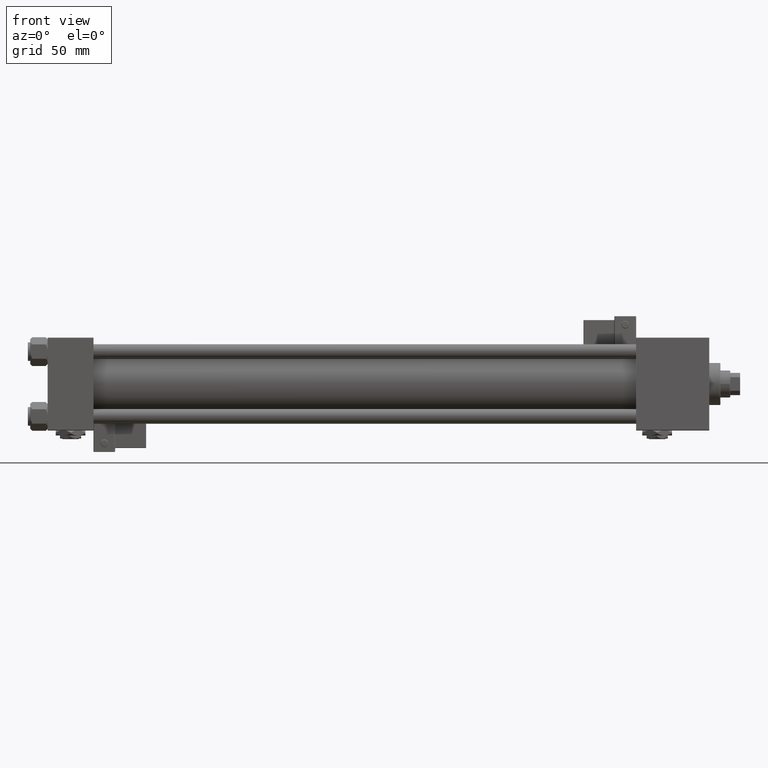
[diagram: clean part render]
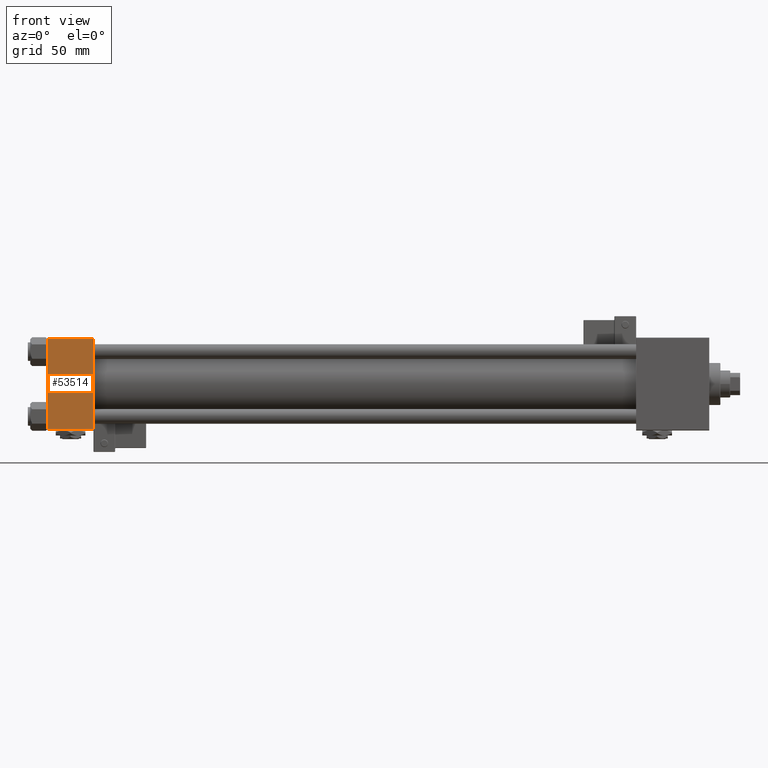
[diagram: same view with one face highlighted and labeled with its STEP entity id]
A machine part, front view. The second image highlights one B-rep face of the part: STEP entity #53514.
In plain terms, the highlighted planar face has unit normal (0, 1, 0).
Its self-contained STEP definition (entity closure, byte-faithful):
#470 = CARTESIAN_POINT ( 'NONE',  ( 37.00000000000000000, -37.50000000000000711, 36.99999999999999289 ) ) ;
#2341 = DIRECTION ( 'NONE',  ( -0.000000000000000000, 1.000000000000000000, 9.251858538542971581E-17 ) ) ;
#3754 = CARTESIAN_POINT ( 'NONE',  ( 37.00000000000000000, -37.50000000000000711, 37.49999999999999289 ) ) ;
#4377 = VECTOR ( 'NONE', #29121, 1000.000000000000000 ) ;
#5012 = EDGE_CURVE ( 'NONE', #18720, #52074, #34948, .T. ) ;
#6843 = PLANE ( 'NONE',  #52420 ) ;
#7640 = ORIENTED_EDGE ( 'NONE', *, *, #42523, .F. ) ;
#8037 = ORIENTED_EDGE ( 'NONE', *, *, #45706, .T. ) ;
#8401 = DIRECTION ( 'NONE',  ( -1.000000000000000000, 0.000000000000000000, 0.000000000000000000 ) ) ;
#8593 = EDGE_LOOP ( 'NONE', ( #40040, #11312, #7640, #8037 ) ) ;
#11312 = ORIENTED_EDGE ( 'NONE', *, *, #5012, .T. ) ;
#13499 = CARTESIAN_POINT ( 'NONE',  ( 37.00000000000000000, -37.50000000000000000, -37.00000000000003553 ) ) ;
#15584 = DIRECTION ( 'NONE',  ( 0.000000000000000000, -9.251858538542971581E-17, 1.000000000000000000 ) ) ;
#16715 = LINE ( 'NONE', #3754, #4377 ) ;
#18720 = VERTEX_POINT ( 'NONE', #22730 ) ;
#22730 = CARTESIAN_POINT ( 'NONE',  ( 0.000000000000000000, -37.50000000000000000, -37.00000000000003553 ) ) ;
#29121 = DIRECTION ( 'NONE',  ( 0.000000000000000000, 9.251858538542971581E-17, -1.000000000000000000 ) ) ;
#30105 = CARTESIAN_POINT ( 'NONE',  ( 37.00000000000000000, -37.50000000000000711, 36.99999999999999289 ) ) ;
#31078 = VERTEX_POINT ( 'NONE', #44782 ) ;
#34948 = LINE ( 'NONE', #13499, #53798 ) ;
#34996 = CARTESIAN_POINT ( 'NONE',  ( 37.00000000000000000, -37.50000000000000000, -37.00000000000003553 ) ) ;
#35898 = VECTOR ( 'NONE', #8401, 1000.000000000000000 ) ;
#36216 = VECTOR ( 'NONE', #51850, 1000.000000000000000 ) ;
#39101 = CARTESIAN_POINT ( 'NONE',  ( 0.000000000000000000, -37.50000000000000711, 37.49999999999999289 ) ) ;
#40040 = ORIENTED_EDGE ( 'NONE', *, *, #52701, .T. ) ;
#42523 = EDGE_CURVE ( 'NONE', #52603, #52074, #16715, .T. ) ;
#43328 = LINE ( 'NONE', #39101, #36216 ) ;
#44782 = CARTESIAN_POINT ( 'NONE',  ( 0.000000000000000000, -37.50000000000000711, 36.99999999999999289 ) ) ;
#45706 = EDGE_CURVE ( 'NONE', #52603, #31078, #46480, .T. ) ;
#46480 = LINE ( 'NONE', #30105, #35898 ) ;
#51850 = DIRECTION ( 'NONE',  ( 0.000000000000000000, 9.251858538542971581E-17, -1.000000000000000000 ) ) ;
#52074 = VERTEX_POINT ( 'NONE', #34996 ) ;
#52420 = AXIS2_PLACEMENT_3D ( 'NONE', #53388, #2341, #15584 ) ;
#52603 = VERTEX_POINT ( 'NONE', #470 ) ;
#52701 = EDGE_CURVE ( 'NONE', #31078, #18720, #43328, .T. ) ;
#53388 = CARTESIAN_POINT ( 'NONE',  ( 37.00000000000000000, -37.50000000000000711, 37.49999999999999289 ) ) ;
#53514 = ADVANCED_FACE ( 'NONE', ( #54218 ), #6843, .F. ) ;
#53537 = DIRECTION ( 'NONE',  ( 1.000000000000000000, 0.000000000000000000, 0.000000000000000000 ) ) ;
#53798 = VECTOR ( 'NONE', #53537, 1000.000000000000000 ) ;
#54218 = FACE_OUTER_BOUND ( 'NONE', #8593, .T. ) ;